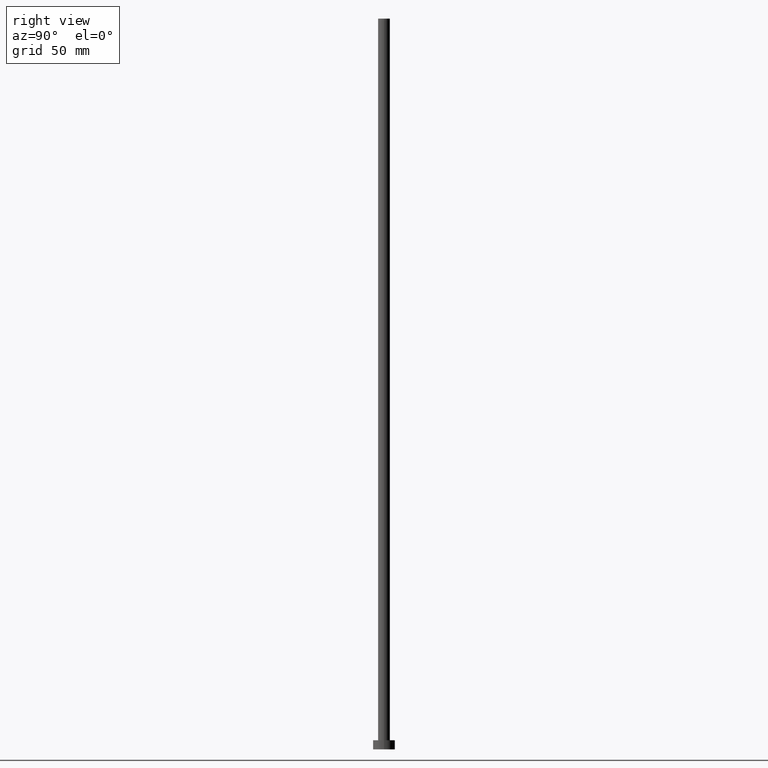
[diagram: clean part render]
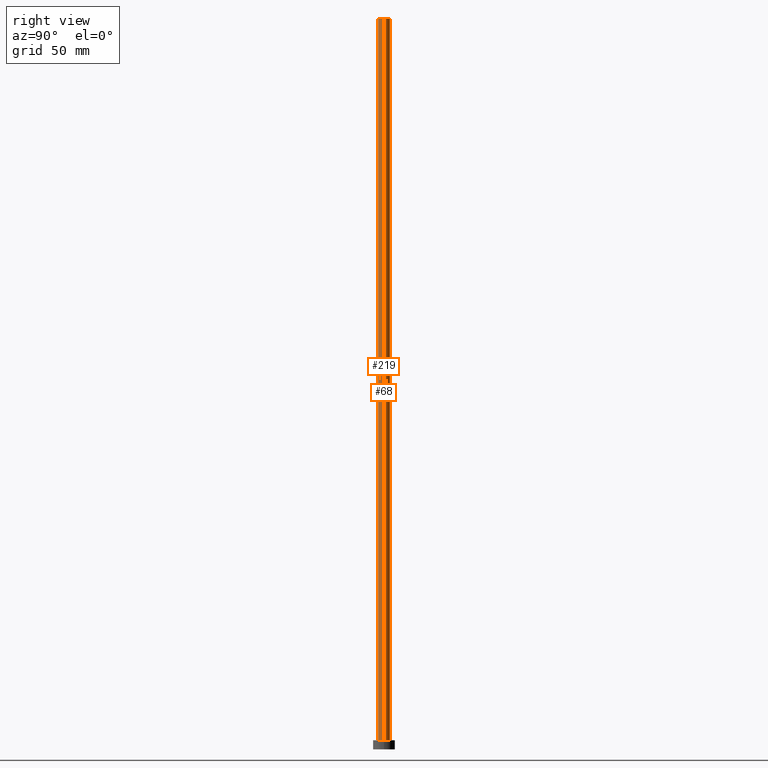
[diagram: same view with one multi-face feature highlighted, each face labeled with its STEP entity id]
A machine part, right view. The highlighted faces form ONE feature: a constant-radius fillet chain: 2 tangent blend faces with common blend radius 3.25 mm. The faces share edges in the B-rep.
Their STEP definitions:
[1] entity #68 (Cylinder):
#1 = CARTESIAN_POINT ( 'NONE',  ( 0.000000000000000000, 0.000000000000000000, 400.0000000000000000 ) ) ;
#7 = CARTESIAN_POINT ( 'NONE',  ( 0.000000000000000000, 0.000000000000000000, 400.0000000000000000 ) ) ;
#12 = VERTEX_POINT ( 'NONE', #131 ) ;
#14 = ORIENTED_EDGE ( 'NONE', *, *, #17, .T. ) ;
#17 = EDGE_CURVE ( 'NONE', #34, #72, #171, .T. ) ;
#25 = LINE ( 'NONE', #241, #39 ) ;
#34 = VERTEX_POINT ( 'NONE', #75 ) ;
#36 = DIRECTION ( 'NONE',  ( 0.000000000000000000, 0.000000000000000000, 1.000000000000000000 ) ) ;
#39 = VECTOR ( 'NONE', #224, 1000.000000000000000 ) ;
#46 = CYLINDRICAL_SURFACE ( 'NONE', #183, 3.250000000000000444 ) ;
#52 = CARTESIAN_POINT ( 'NONE',  ( -3.250000000000000444, 0.000000000000000000, 400.0000000000000000 ) ) ;
#68 = ADVANCED_FACE ( 'NONE', ( #84 ), #46, .T. ) ;
#72 = VERTEX_POINT ( 'NONE', #138 ) ;
#75 = CARTESIAN_POINT ( 'NONE',  ( 3.250000000000000444, 3.980102097228897245E-16, 5.000000000000000000 ) ) ;
#84 = FACE_OUTER_BOUND ( 'NONE', #210, .T. ) ;
#88 = CARTESIAN_POINT ( 'NONE',  ( 0.000000000000000000, 0.000000000000000000, 5.000000000000000000 ) ) ;
#111 = DIRECTION ( 'NONE',  ( 1.000000000000000000, 0.000000000000000000, 0.000000000000000000 ) ) ;
#112 = ORIENTED_EDGE ( 'NONE', *, *, #117, .F. ) ;
#113 = CIRCLE ( 'NONE', #193, 3.250000000000000444 ) ;
#117 = EDGE_CURVE ( 'NONE', #169, #72, #25, .T. ) ;
#131 = CARTESIAN_POINT ( 'NONE',  ( 3.250000000000000444, 3.980102097228897245E-16, 400.0000000000000000 ) ) ;
#133 = AXIS2_PLACEMENT_3D ( 'NONE', #88, #36, #111 ) ;
#138 = CARTESIAN_POINT ( 'NONE',  ( -3.250000000000000444, 0.000000000000000000, 5.000000000000000000 ) ) ;
#142 = LINE ( 'NONE', #159, #200 ) ;
#143 = DIRECTION ( 'NONE',  ( -0.000000000000000000, -0.000000000000000000, -1.000000000000000000 ) ) ;
#159 = CARTESIAN_POINT ( 'NONE',  ( 3.250000000000000444, 3.980102097228897245E-16, 400.0000000000000000 ) ) ;
#169 = VERTEX_POINT ( 'NONE', #52 ) ;
#171 = CIRCLE ( 'NONE', #133, 3.250000000000000444 ) ;
#174 = EDGE_CURVE ( 'NONE', #12, #169, #113, .T. ) ;
#175 = DIRECTION ( 'NONE',  ( -0.000000000000000000, -0.000000000000000000, -1.000000000000000000 ) ) ;
#183 = AXIS2_PLACEMENT_3D ( 'NONE', #1, #175, #237 ) ;
#190 = ORIENTED_EDGE ( 'NONE', *, *, #211, .T. ) ;
#193 = AXIS2_PLACEMENT_3D ( 'NONE', #7, #225, #223 ) ;
#200 = VECTOR ( 'NONE', #143, 1000.000000000000000 ) ;
#210 = EDGE_LOOP ( 'NONE', ( #212, #190, #14, #112 ) ) ;
#211 = EDGE_CURVE ( 'NONE', #12, #34, #142, .T. ) ;
#212 = ORIENTED_EDGE ( 'NONE', *, *, #174, .F. ) ;
#223 = DIRECTION ( 'NONE',  ( 1.000000000000000000, 0.000000000000000000, 0.000000000000000000 ) ) ;
#224 = DIRECTION ( 'NONE',  ( -0.000000000000000000, -0.000000000000000000, -1.000000000000000000 ) ) ;
#225 = DIRECTION ( 'NONE',  ( 0.000000000000000000, 0.000000000000000000, 1.000000000000000000 ) ) ;
#237 = DIRECTION ( 'NONE',  ( -1.000000000000000000, 0.000000000000000000, 0.000000000000000000 ) ) ;
#241 = CARTESIAN_POINT ( 'NONE',  ( -3.250000000000000444, 0.000000000000000000, 400.0000000000000000 ) ) ;
[2] entity #219 (Cylinder):
#3 = DIRECTION ( 'NONE',  ( 0.000000000000000000, 0.000000000000000000, 1.000000000000000000 ) ) ;
#12 = VERTEX_POINT ( 'NONE', #131 ) ;
#15 = AXIS2_PLACEMENT_3D ( 'NONE', #161, #101, #182 ) ;
#25 = LINE ( 'NONE', #241, #39 ) ;
#27 = CYLINDRICAL_SURFACE ( 'NONE', #15, 3.250000000000000444 ) ;
#34 = VERTEX_POINT ( 'NONE', #75 ) ;
#35 = CIRCLE ( 'NONE', #176, 3.250000000000000444 ) ;
#39 = VECTOR ( 'NONE', #224, 1000.000000000000000 ) ;
#51 = FACE_OUTER_BOUND ( 'NONE', #70, .T. ) ;
#52 = CARTESIAN_POINT ( 'NONE',  ( -3.250000000000000444, 0.000000000000000000, 400.0000000000000000 ) ) ;
#70 = EDGE_LOOP ( 'NONE', ( #166, #215, #91, #151 ) ) ;
#72 = VERTEX_POINT ( 'NONE', #138 ) ;
#75 = CARTESIAN_POINT ( 'NONE',  ( 3.250000000000000444, 3.980102097228897245E-16, 5.000000000000000000 ) ) ;
#76 = EDGE_CURVE ( 'NONE', #72, #34, #202, .T. ) ;
#85 = AXIS2_PLACEMENT_3D ( 'NONE', #93, #3, #196 ) ;
#89 = EDGE_CURVE ( 'NONE', #169, #12, #35, .T. ) ;
#91 = ORIENTED_EDGE ( 'NONE', *, *, #117, .T. ) ;
#93 = CARTESIAN_POINT ( 'NONE',  ( 0.000000000000000000, 0.000000000000000000, 5.000000000000000000 ) ) ;
#97 = DIRECTION ( 'NONE',  ( 0.000000000000000000, 0.000000000000000000, 1.000000000000000000 ) ) ;
#98 = CARTESIAN_POINT ( 'NONE',  ( 0.000000000000000000, 0.000000000000000000, 400.0000000000000000 ) ) ;
#101 = DIRECTION ( 'NONE',  ( -0.000000000000000000, -0.000000000000000000, -1.000000000000000000 ) ) ;
#117 = EDGE_CURVE ( 'NONE', #169, #72, #25, .T. ) ;
#131 = CARTESIAN_POINT ( 'NONE',  ( 3.250000000000000444, 3.980102097228897245E-16, 400.0000000000000000 ) ) ;
#138 = CARTESIAN_POINT ( 'NONE',  ( -3.250000000000000444, 0.000000000000000000, 5.000000000000000000 ) ) ;
#142 = LINE ( 'NONE', #159, #200 ) ;
#143 = DIRECTION ( 'NONE',  ( -0.000000000000000000, -0.000000000000000000, -1.000000000000000000 ) ) ;
#151 = ORIENTED_EDGE ( 'NONE', *, *, #76, .T. ) ;
#159 = CARTESIAN_POINT ( 'NONE',  ( 3.250000000000000444, 3.980102097228897245E-16, 400.0000000000000000 ) ) ;
#161 = CARTESIAN_POINT ( 'NONE',  ( 0.000000000000000000, 0.000000000000000000, 400.0000000000000000 ) ) ;
#166 = ORIENTED_EDGE ( 'NONE', *, *, #211, .F. ) ;
#169 = VERTEX_POINT ( 'NONE', #52 ) ;
#176 = AXIS2_PLACEMENT_3D ( 'NONE', #98, #97, #178 ) ;
#178 = DIRECTION ( 'NONE',  ( 1.000000000000000000, 0.000000000000000000, 0.000000000000000000 ) ) ;
#182 = DIRECTION ( 'NONE',  ( -1.000000000000000000, 0.000000000000000000, 0.000000000000000000 ) ) ;
#196 = DIRECTION ( 'NONE',  ( 1.000000000000000000, 0.000000000000000000, 0.000000000000000000 ) ) ;
#200 = VECTOR ( 'NONE', #143, 1000.000000000000000 ) ;
#202 = CIRCLE ( 'NONE', #85, 3.250000000000000444 ) ;
#211 = EDGE_CURVE ( 'NONE', #12, #34, #142, .T. ) ;
#215 = ORIENTED_EDGE ( 'NONE', *, *, #89, .F. ) ;
#219 = ADVANCED_FACE ( 'NONE', ( #51 ), #27, .T. ) ;
#224 = DIRECTION ( 'NONE',  ( -0.000000000000000000, -0.000000000000000000, -1.000000000000000000 ) ) ;
#241 = CARTESIAN_POINT ( 'NONE',  ( -3.250000000000000444, 0.000000000000000000, 400.0000000000000000 ) ) ;